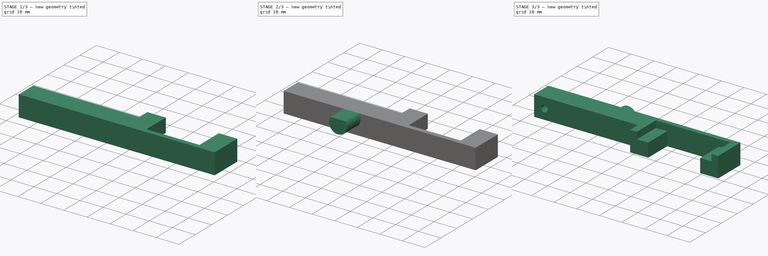
[diagram: build sequence overview — one tinted view per stage of 3, left to right]
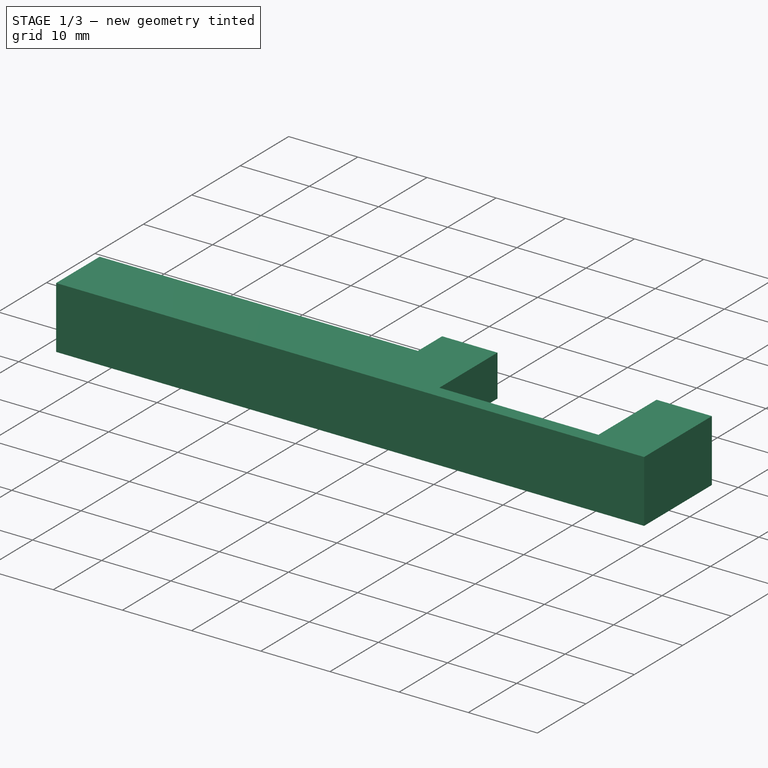
[diagram: stage 1 of 3 — iso view after this stage's code; geometry added in this stage tinted green]
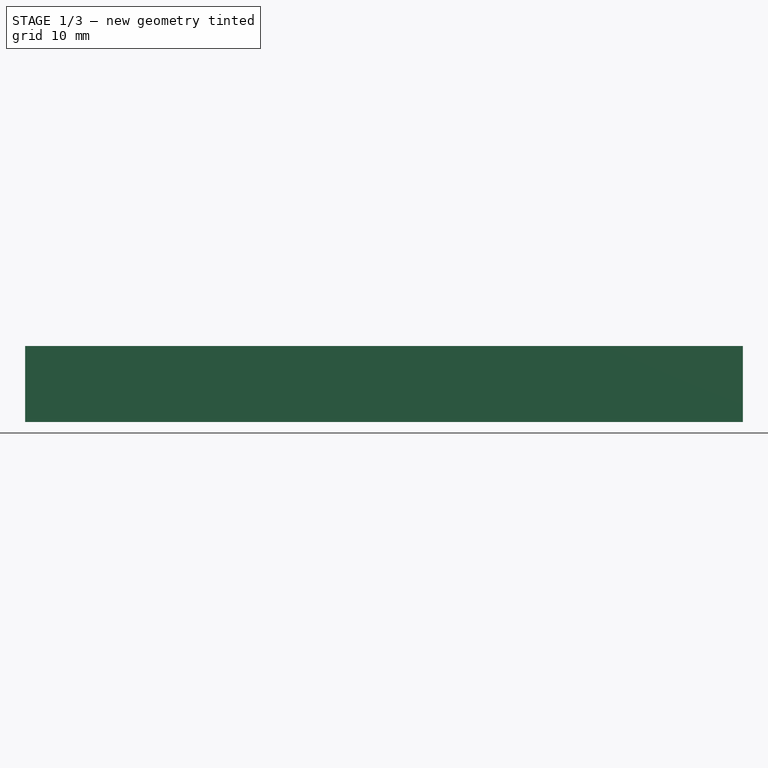
[diagram: stage 1 of 3 — front view after this stage's code; geometry added in this stage tinted green]
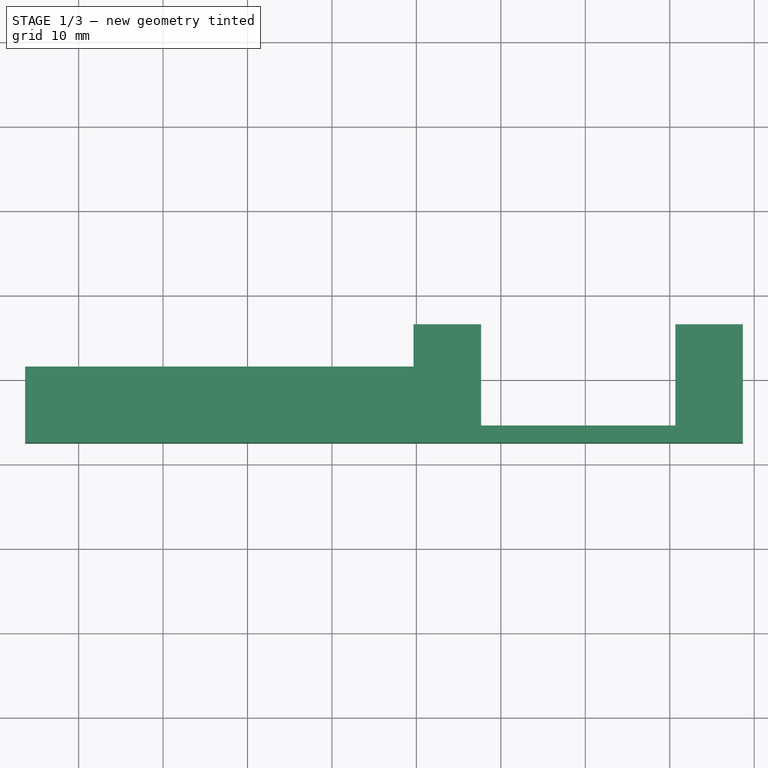
[diagram: stage 1 of 3 — top view after this stage's code; geometry added in this stage tinted green]
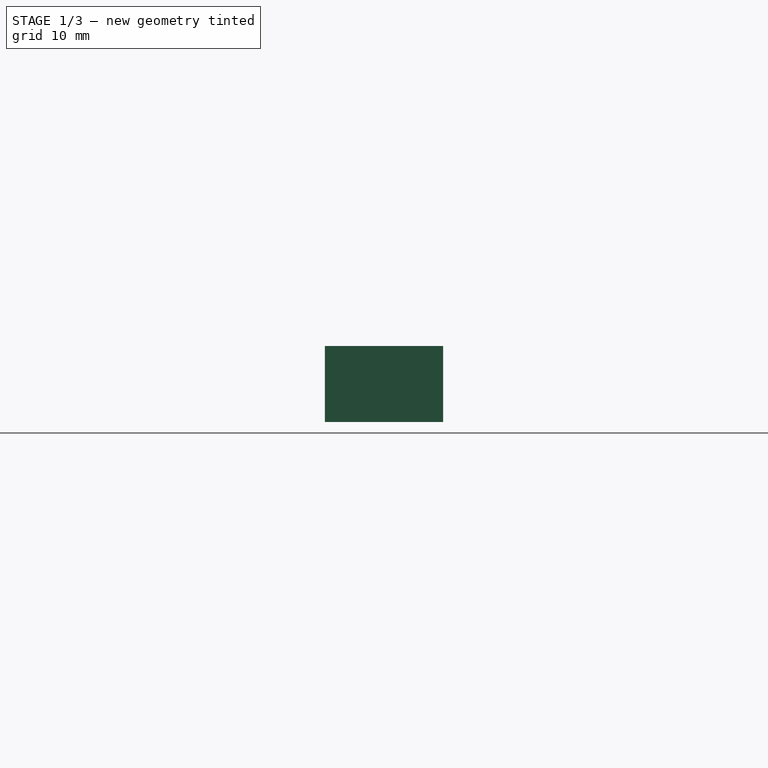
[diagram: stage 1 of 3 — right view after this stage's code; geometry added in this stage tinted green]
FCSTD DOCUMENT  (FreeCAD 0.14R3702 (Git))
Label: brazo-izquierdo
License: CC-BY 3.0
LicenseURL: http://creativecommons.org/licenses/by/3.0/
objects: Sketcher::SketchObject×5, PartDesign::Pocket×2, PartDesign::Pad×2, Part::Extrusion×1, PartDesign::Chamfer×1
note: 15 computed .brp shape members not serialized (recipe doc carries the construction recipe); baked Part::Feature solids carry a one-line shape summary decoded from their .brp

FEATURE [Sketcher::SketchObject] Sketch  label="sk-base"
  sketch-geometry (6):
    g0: LineSegment StartX=-26.3372 StartY=11.4869 StartZ=0 EndX=-26.3372 EndY=2.48694 EndZ=0
    g1: LineSegment StartX=-26.3372 StartY=2.48694 StartZ=0 EndX=58.6628 EndY=2.48694 EndZ=0
    g2: LineSegment StartX=58.6628 StartY=2.48694 StartZ=0 EndX=58.6628 EndY=16.4869 EndZ=0
    g3: LineSegment StartX=58.6628 StartY=16.4869 StartZ=0 EndX=19.6628 EndY=16.4869 EndZ=0
    g4: LineSegment StartX=19.6628 StartY=16.4869 StartZ=0 EndX=19.6628 EndY=11.4869 EndZ=0
    g5: LineSegment StartX=19.6628 StartY=11.4869 StartZ=0 EndX=-26.3372 EndY=11.4869 EndZ=0
  constraints (16):
    c: Coincident(g0,g1)
    c: Coincident(g1,g2)
    c: Coincident(g2,g3)
    c: Coincident(g3,g4)
    c: Coincident(g4,g5)
    c: Coincident(g5,g0)
    c: Horizontal(g3)
    c: Horizontal(g5)
    c: Horizontal(g1)
    c: Vertical(g4)
    c: Vertical(g2)
    c: Vertical(g0)
    c: DistanceY(g0) = -9
    c: DistanceY(g2) = 14
    c: DistanceX(g1) = 85
    c: DistanceX(g3) = -39
FEATURE [Part::Extrusion] Extrude  label="pd-base"
  Base = -> Sketch
  Dir = (0,0,9)
  Solid = true
FEATURE [Sketcher::SketchObject] Sketch001  label="sk-hueco-servo"
  ExternalGeometry = -> [Extrude]
  Placement = pos=(0,16.4869,0) rot=(0,0.707107,0.707107;3.14159rad)
  Support = -> Extrude [Face4]
  sketch-geometry (8):
    g0: LineSegment StartX=-55.6628 StartY=0 StartZ=0 EndX=-55.6628 EndY=3 EndZ=0
    g1: LineSegment StartX=-55.6628 StartY=3 StartZ=0 EndX=-50.6628 EndY=3 EndZ=0
    g2: LineSegment StartX=-50.6628 StartY=3 StartZ=0 EndX=-50.6628 EndY=9 EndZ=0
    g3: LineSegment StartX=-50.6628 StartY=9 StartZ=0 EndX=-27.6628 EndY=9 EndZ=0
    g4: LineSegment StartX=-27.6628 StartY=9 StartZ=0 EndX=-27.6628 EndY=3 EndZ=0
    g5: LineSegment StartX=-27.6628 StartY=3 StartZ=0 EndX=-22.6628 EndY=3 EndZ=0
    g6: LineSegment StartX=-22.6628 StartY=3 StartZ=0 EndX=-22.6628 EndY=0 EndZ=0
    g7: LineSegment StartX=-22.6628 StartY=0 StartZ=0 EndX=-55.6628 EndY=0 EndZ=0
  constraints (24):
    c: Coincident(g0,g1)
    c: Coincident(g1,g2)
    c: Coincident(g2,g3)
    c: Coincident(g3,g4)
    c: Coincident(g4,g5)
    c: Coincident(g5,g6)
    c: Coincident(g6,g7)
    c: Coincident(g0,g7)
    c: Horizontal(g3)
    c: Horizontal(g7)
    c: Horizontal(g5)
    c: Horizontal(g1)
    c: Vertical(g2)
    c: Vertical(g4)
    c: Vertical(g0)
    c: Vertical(g6)
    c: Equal(g0,g6)
    c: Equal(g5,g1)
    c: DistanceY(g0) = 3
    c: PointOnObject(g2,g-4)
    c: PointOnObject(g0,g-3)
    c: DistanceX(g3) = 23
    c: DistanceX(g-3,g0) = 3
    c: DistanceX(g5) = 5
FEATURE [PartDesign::Pocket] Pocket  label="pk-hueco-servo"
  Length = 12
  Sketch = -> Sketch001
  Type = 0
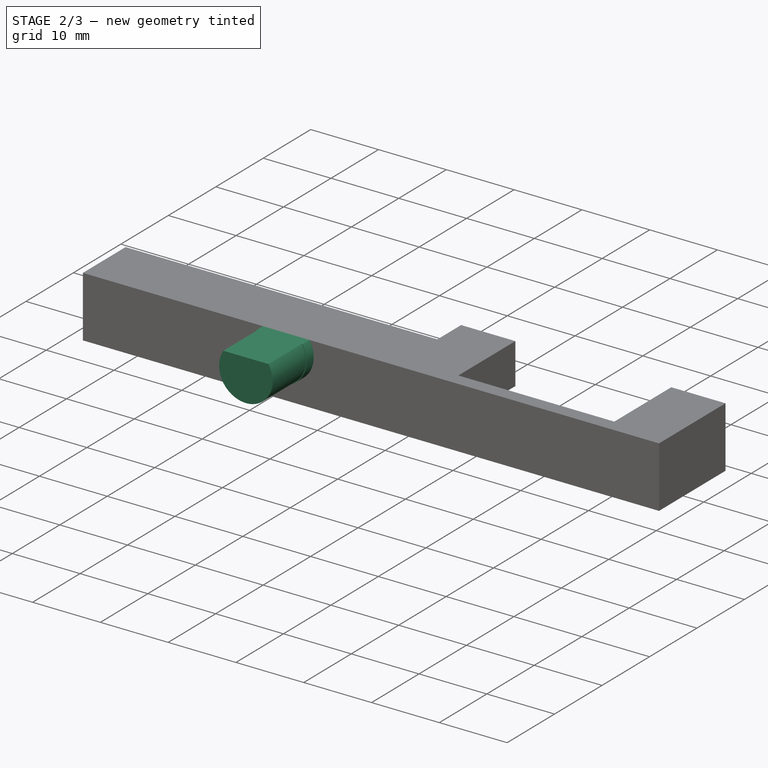
[diagram: stage 2 of 3 — iso view after this stage's code; geometry added in this stage tinted green]
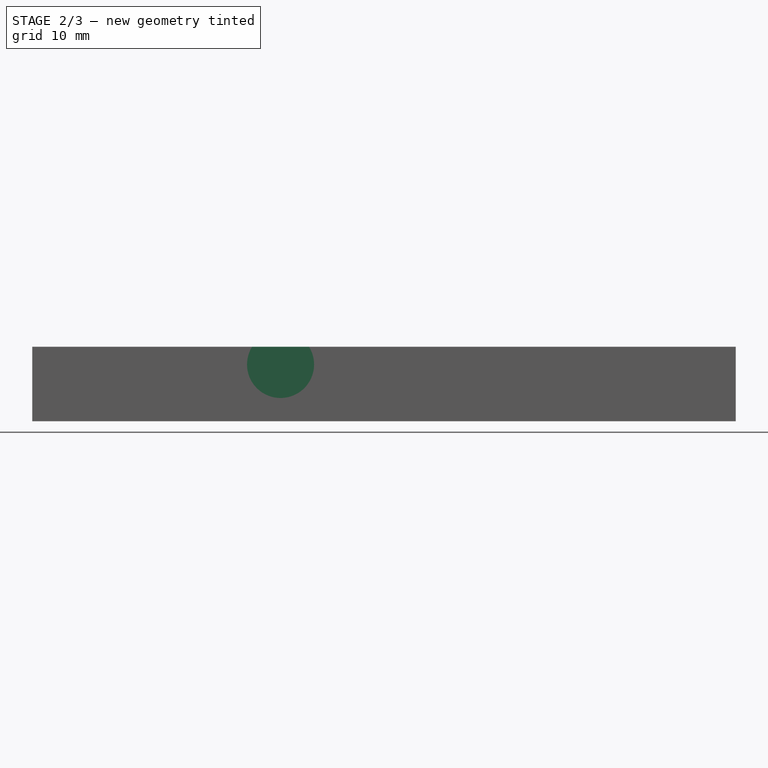
[diagram: stage 2 of 3 — front view after this stage's code; geometry added in this stage tinted green]
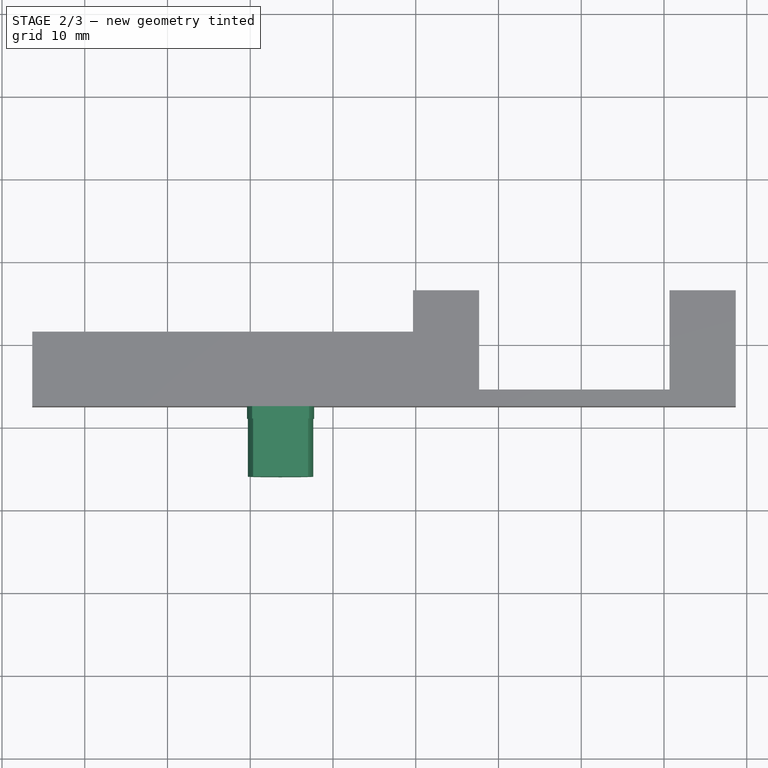
[diagram: stage 2 of 3 — top view after this stage's code; geometry added in this stage tinted green]
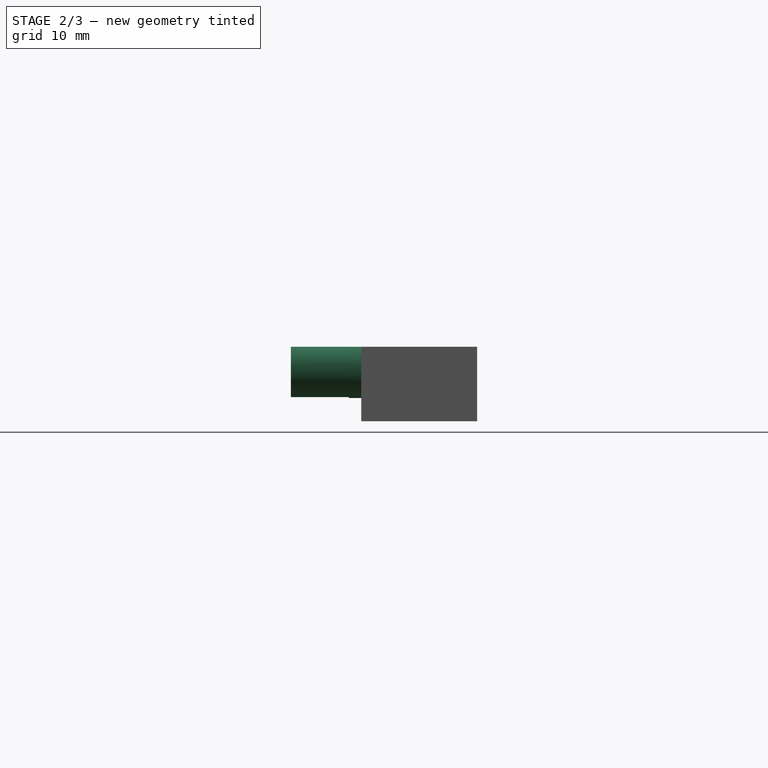
[diagram: stage 2 of 3 — right view after this stage's code; geometry added in this stage tinted green]
FEATURE [Sketcher::SketchObject] Sketch002  label="sk-eje-rodamiento-1"
  Placement = pos=(0,2.48694,0) rot=(1,0,0;1.5708rad)
  Support = -> Pocket [Face3]
  sketch-geometry (2):
    g0: ArcOfCircle CenterX=3.66284 CenterY=6.86034 CenterZ=0 NormalX=0 NormalY=0 NormalZ=1 Radius=4.05 StartAngle=2.58498 EndAngle=6.8398
    g1: LineSegment StartX=0.224187 StartY=9 StartZ=0 EndX=7.1015 EndY=9 EndZ=0
  constraints (4):
    c: Coincident(g0,g1)
    c: Coincident(g0,g1)
    c: Radius(g0) = 4.05
    c: Horizontal(g1)
FEATURE [PartDesign::Pad] Pad  label="pad-eje-rodamiento"
  Length = 1.5
  Length2 = 5
  Sketch = -> Sketch002
  Type = 0
FEATURE [Sketcher::SketchObject] Sketch003  label="sk-eje-rodamiento-2"
  ExternalGeometry = -> [Pad]
  Placement = pos=(0,0.986937,0) rot=(1,0,0;1.5708rad)
  Support = -> Pad [Face15]
  sketch-geometry (2):
    g0: ArcOfCircle CenterX=3.66284 CenterY=6.86034 CenterZ=0 NormalX=0 NormalY=0 NormalZ=1 Radius=3.95 StartAngle=2.56915 EndAngle=6.85563
    g1: LineSegment StartX=0.342549 StartY=9 StartZ=0 EndX=6.98314 EndY=9 EndZ=0
  constraints (6):
    c: Coincident(g0,g1)
    c: Coincident(g0,g1)
    c: Coincident(g0,g-3)
    c: Horizontal(g1)
    c: PointOnObject(g0,g-4)
    c: Radius(g0) = 3.95
FEATURE [PartDesign::Pad] Pad001  label="pad-eje-rodamiento-2"
  Length = 7
  Length2 = 5
  Sketch = -> Sketch003
  Type = 0
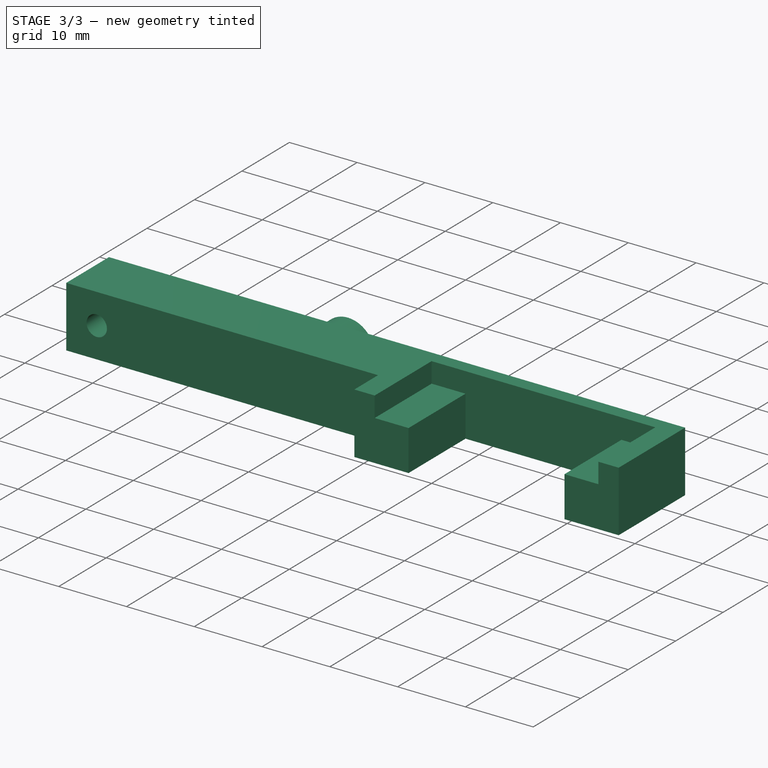
[diagram: stage 3 of 3 — iso view after this stage's code; geometry added in this stage tinted green]
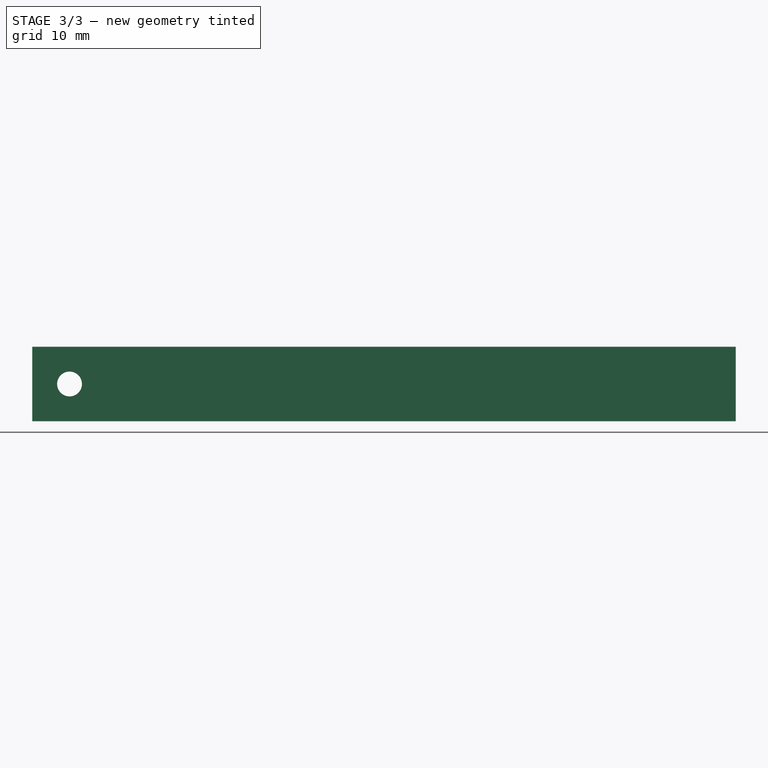
[diagram: stage 3 of 3 — front view after this stage's code; geometry added in this stage tinted green]
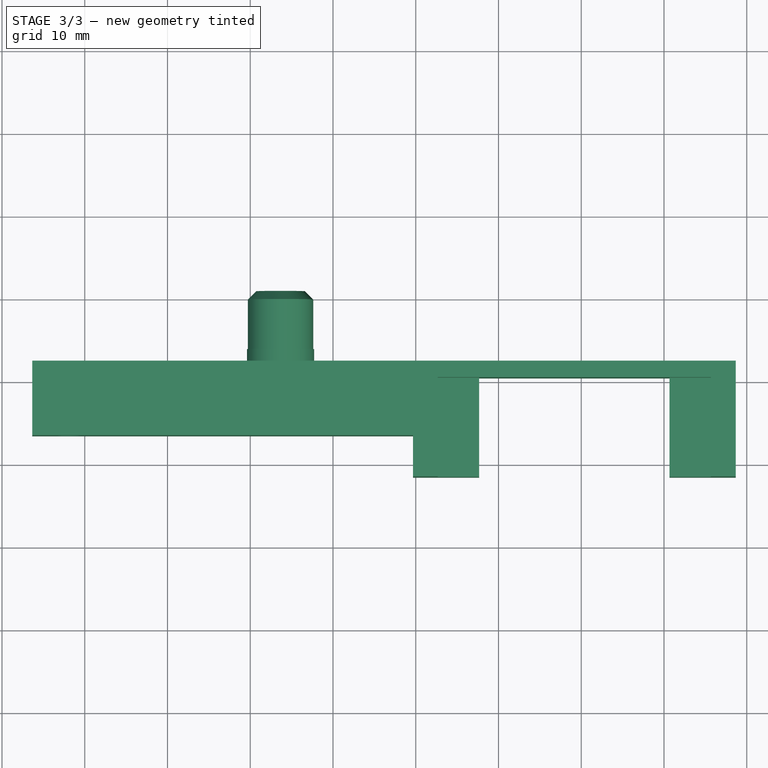
[diagram: stage 3 of 3 — top view after this stage's code; geometry added in this stage tinted green]
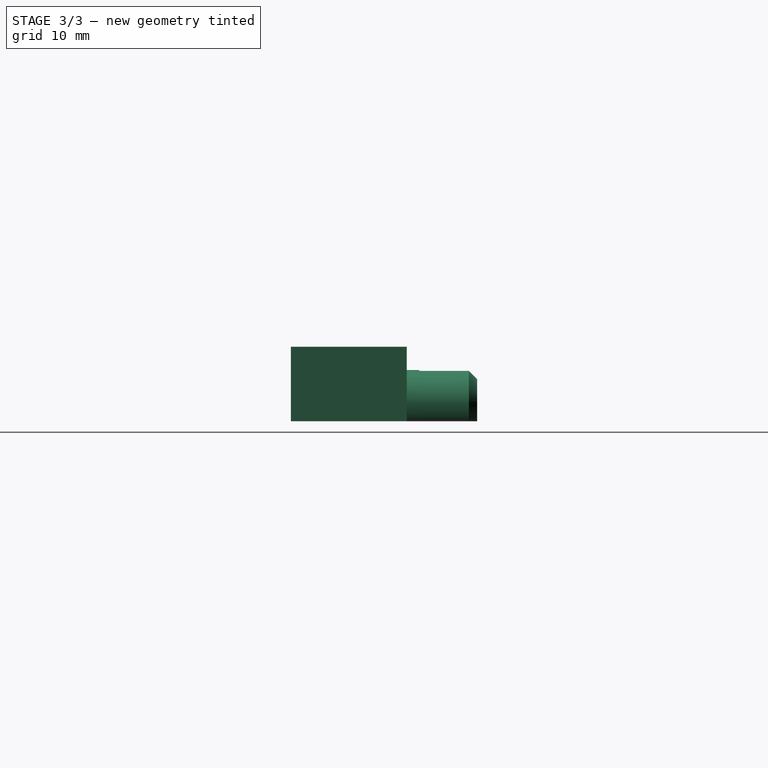
[diagram: stage 3 of 3 — right view after this stage's code; geometry added in this stage tinted green]
FEATURE [PartDesign::Chamfer] Chamfer  label="chanfer-eje"
  Base = -> Pad001 [Edge52]
  Size = 1
FEATURE [Sketcher::SketchObject] Sketch004  label="sk-taladro"
  ExternalGeometry = -> [Chamfer]
  Placement = pos=(0,11.4869,0) rot=(0,0.707107,0.707107;3.14159rad)
  Support = -> Chamfer [Face9]
  sketch-geometry (1):
    g0: Circle CenterX=21.8372 CenterY=4.5 CenterZ=0 NormalX=0 NormalY=0 NormalZ=1 Radius=1.5
  constraints (3):
    c: Radius(g0) = 1.5
    c: Distance(g0,g-3) = 4.5
    c: Distance(g0,g-4) = 4.5
FEATURE [PartDesign::Pocket] Pocket001  label="brazo-izquierdo"
  Length = 5
  Placement = pos=(0,4.97387,18) rot=(1,0,0;3.14159rad)
  Sketch = -> Sketch004
  Type = 1
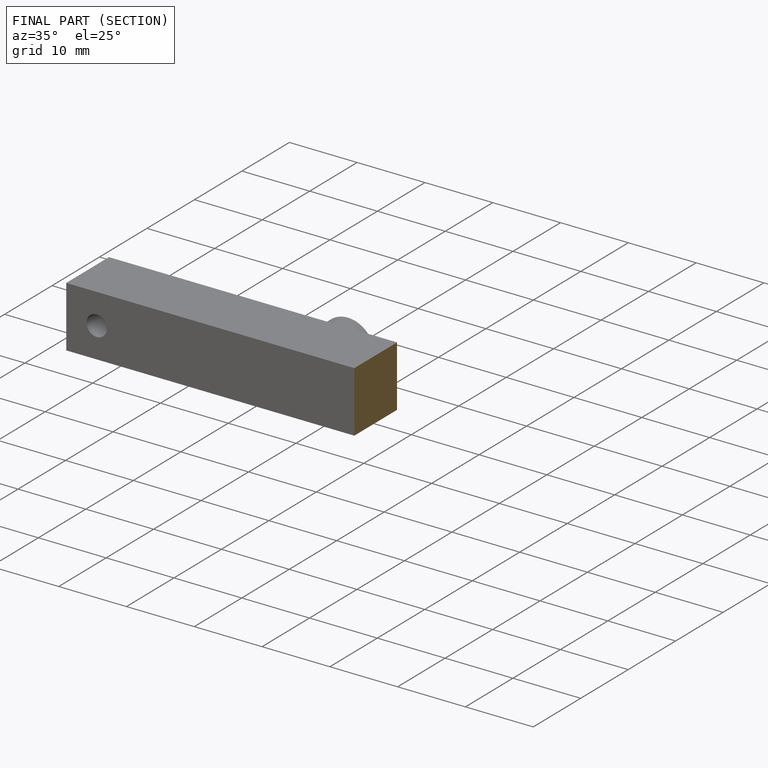
[diagram: finished part — half-section view (interior)]
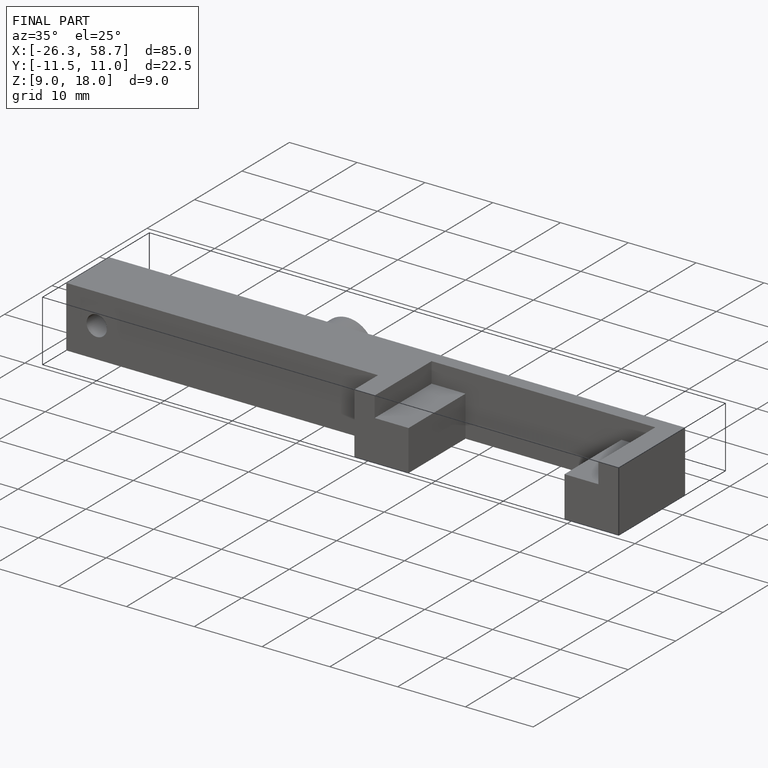
[diagram: finished part — iso view with bounding-box wireframe]
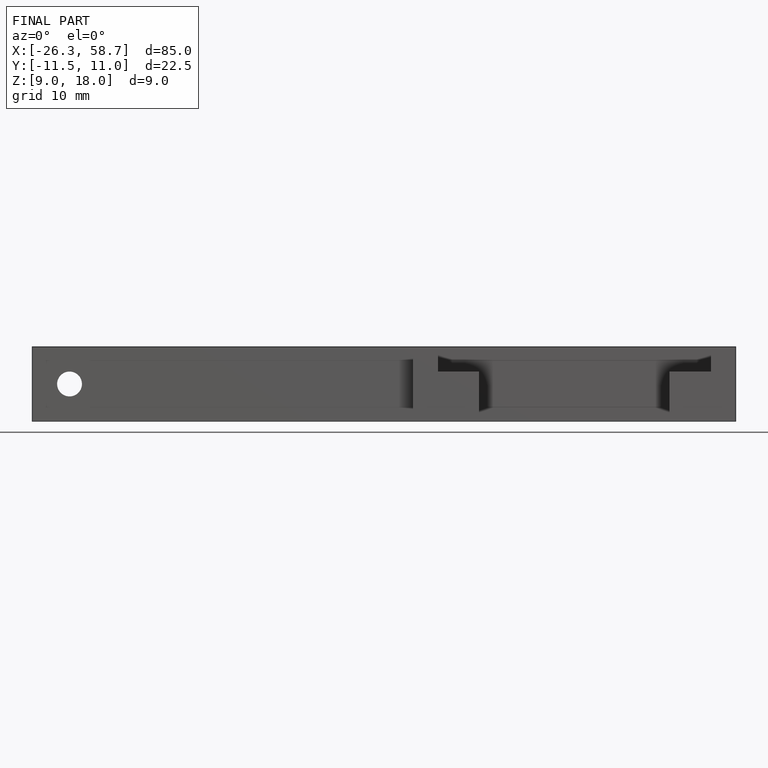
[diagram: finished part — front view with bounding-box wireframe]
